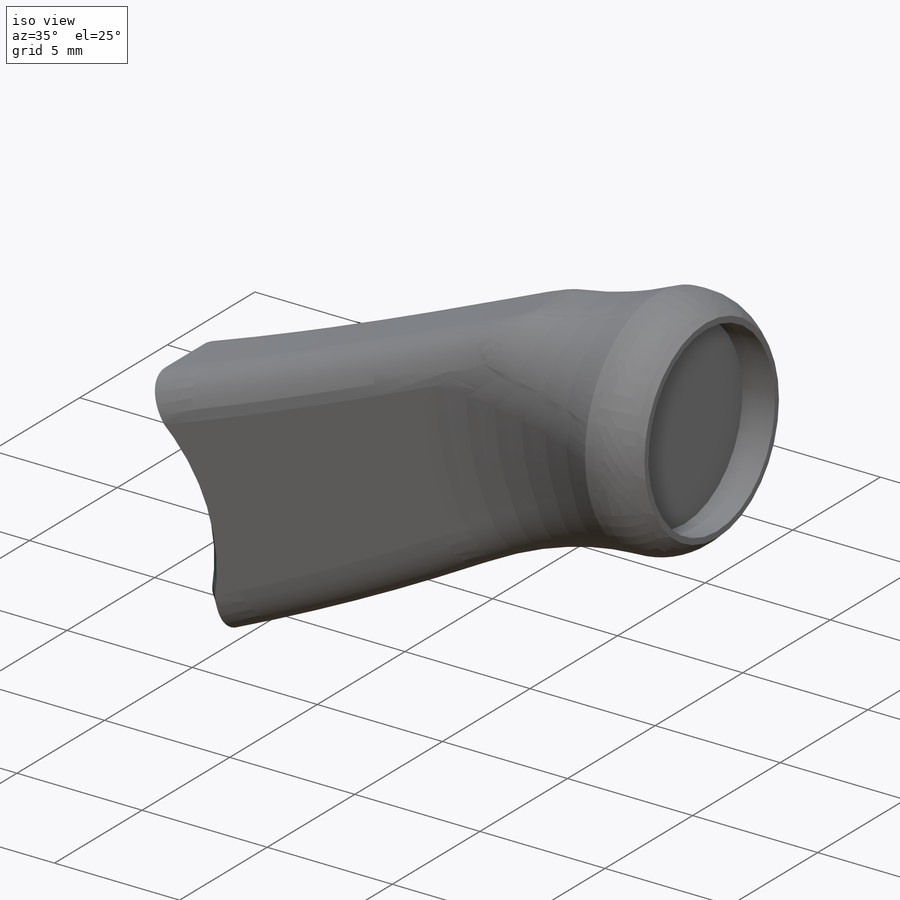
[diagram: iso view]
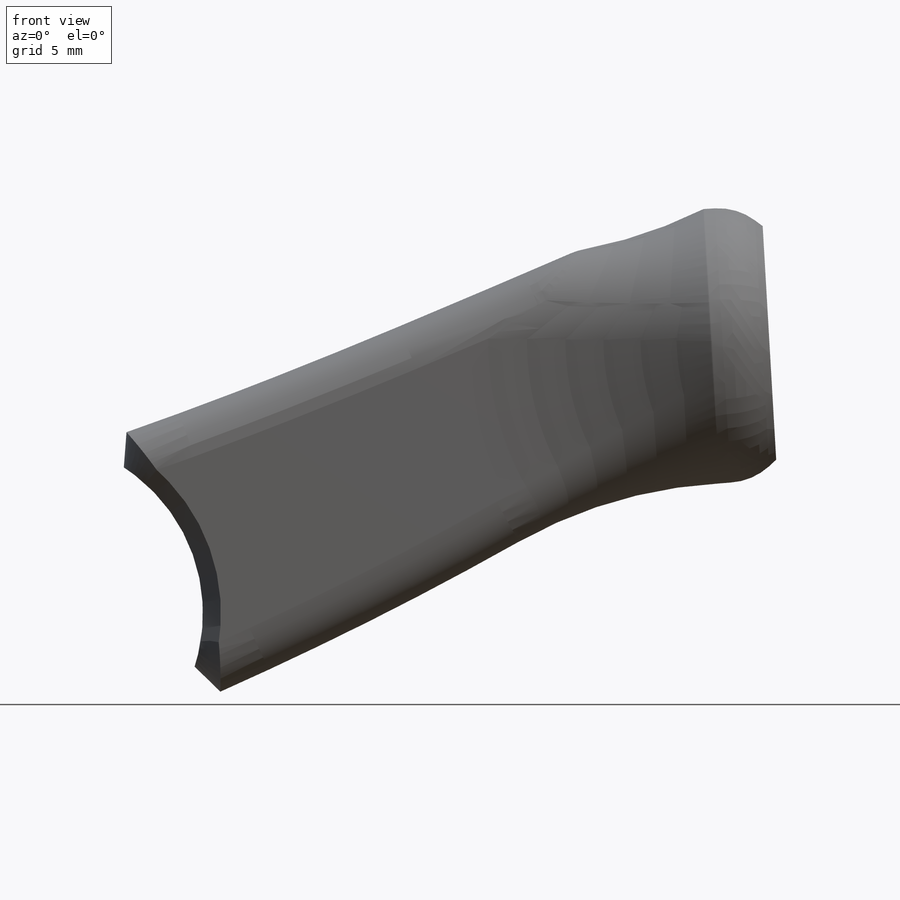
[diagram: front view]
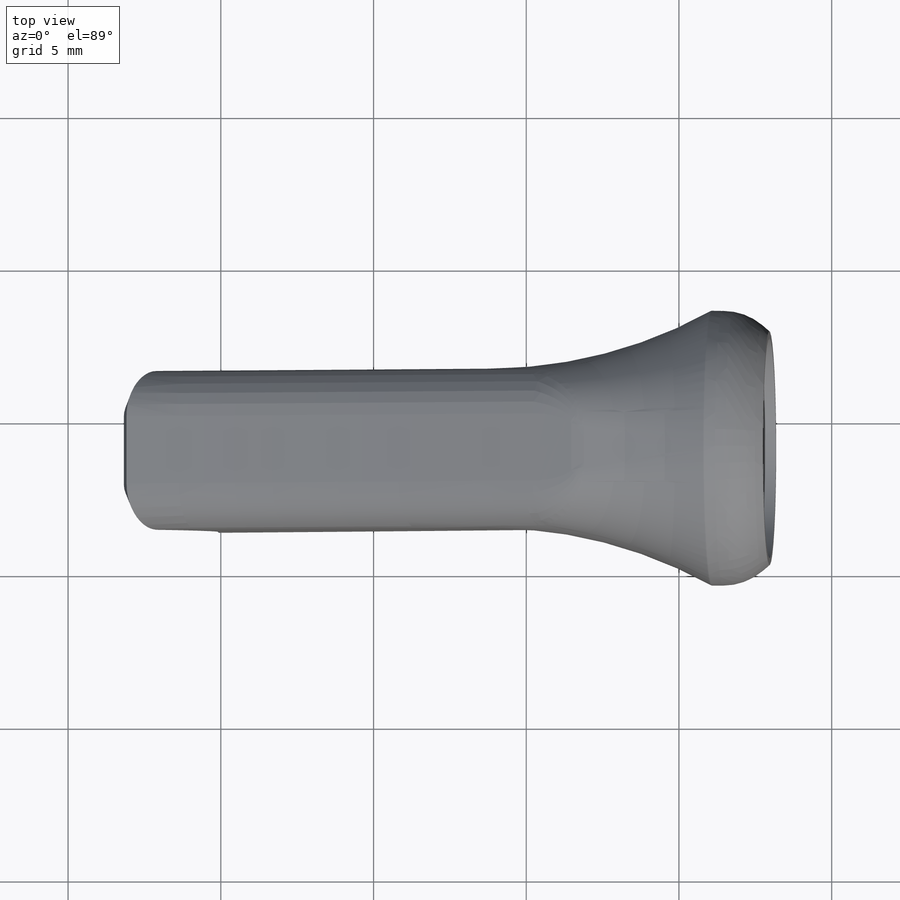
[diagram: top view]
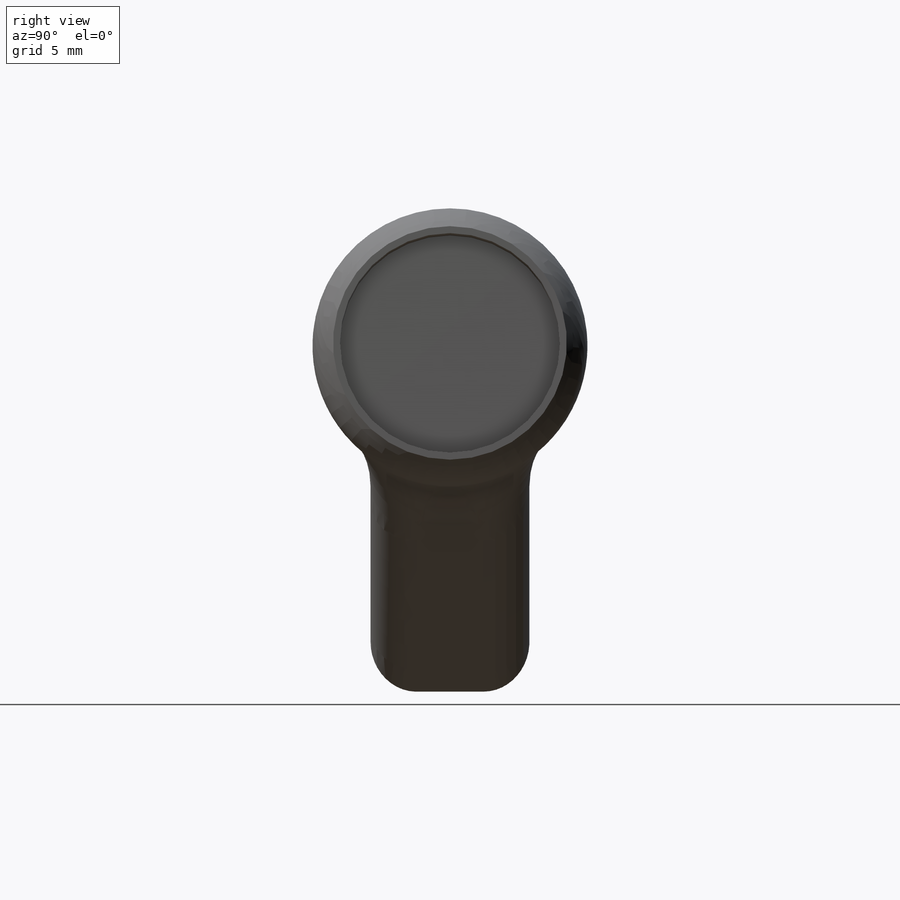
[diagram: right view]
SOLIDWORKS PART (.sldprt)
format: sldprt  version: not decoded by parser v0  size: 640,512 bytes
history: native  units: mm
features: sketch x7, fillet x7, extrude x6, plane x4, chamfer x2, material x1 (+9 scaffold rows collapsed)
feature tree (36):
  scaffold x9  (default folders/planes/origin — collapsed)
  material  "3.0205 (EN-AW 1200)"
  plane  "Спереди"
  plane  "Сверху"
  plane  "Справа"
  plane  "Плоскость4"
  sketch  "Эскиз1"  dims[c1.D5=~1.498954mm c1.D9=1.905mm c1.D1=42.0mm c1.D2=21.0mm c1.D3=4.0mm c1.D4=4.0mm c2.D5=10.0mm c2.D6=10.0mm c2.D7=5.5mm c2.D8=5.5mm c3.D5=5.0mm c3.D6=10.0mm c3.D9=0.9mm]
  extrude  "Бобышка-Вытянуть1"  Depth=2mm
  fillet  "Скругление1"  Radius=1.5mm
  fillet  "Скругление2"  Radius=0.75mm
  sketch  "3DSketch1"
  sketch  "Sketch3"  dims[c1.D2=20.0mm c1.D1=0.2mm c2.D2=1.4mm]
  extrude  "Boss-Extrude1"  Depth=0.2mm
  sketch  "Sketch4"  dims[D1=0.0mm]
  extrude  "Boss-Extrude2"  Depth=1.4mm
  sketch  "Sketch5"  dims[D1=0.0mm]
  extrude  "Boss-Extrude3"  Depth=1.4mm
  sketch  "Sketch6"  dims[D1=5.0mm]
  extrude  "Boss-Extrude4"  Depth=0.6mm
  fillet  "Fillet1"  Radius=1.5mm
  fillet  "Fillet3"  Radius=2mm
  fillet  "Fillet4"  Radius=15mm
  sketch  "Sketch7"  dims[D1=~2.446161mm]
  extrude  "Boss-Extrude5"  Depth=1.3mm
  chamfer  "Chamfer2"  Distance=0.8mm Angle=40deg
  fillet  "Fillet5"  Radius=2mm
  fillet  "Fillet6"  Radius=0.1mm
  chamfer  "Chamfer3"  Distance=0.7mm Angle=40deg
decode coverage: 21 of 22 modeling features carry decoded parameters
note: ~ marks probable driven/reference dimensions
note: suppression state not decoded; provenance and decode notes live in map.json
